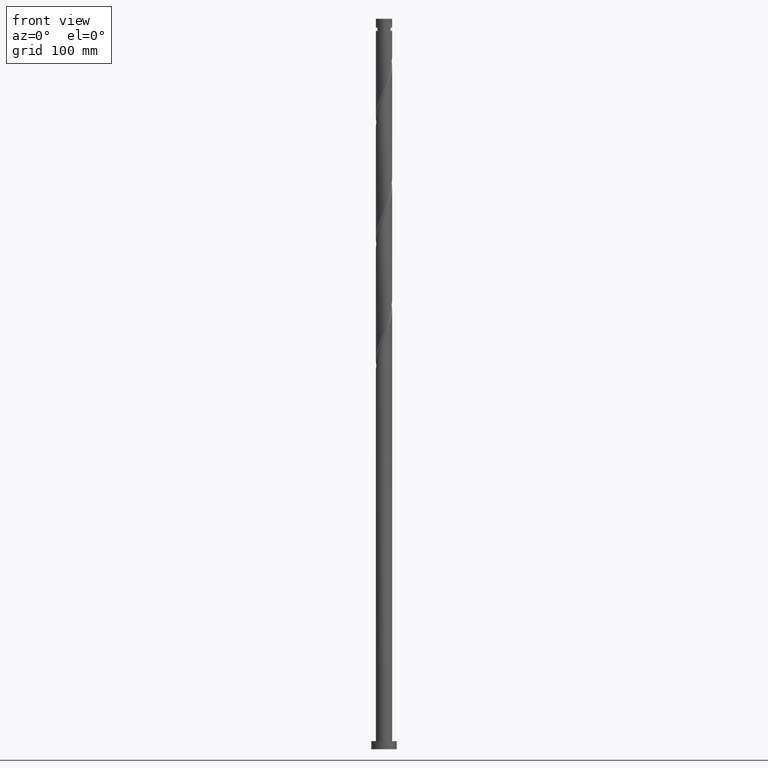
[diagram: clean part render]
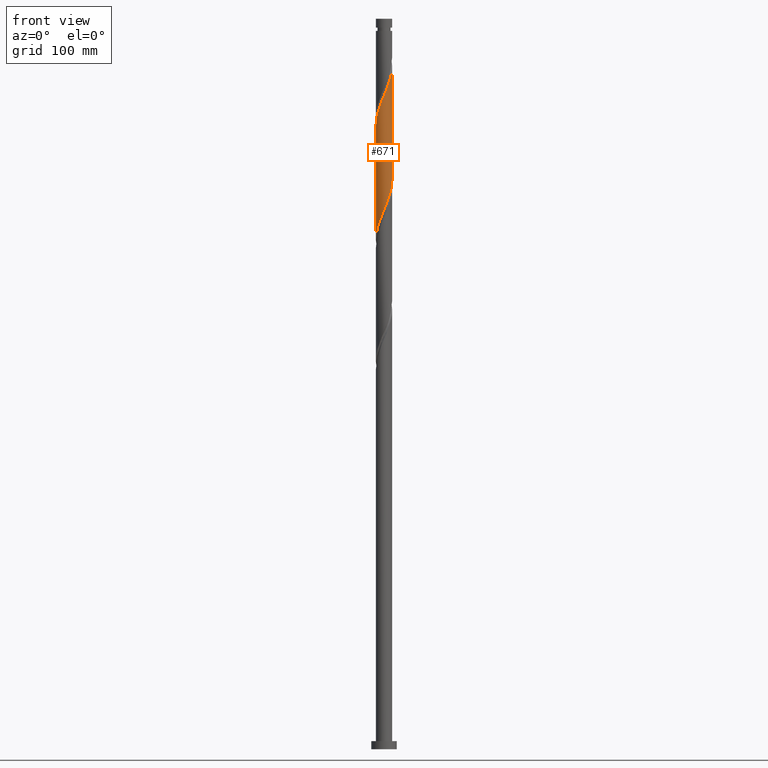
[diagram: same view with one face highlighted and labeled with its STEP entity id]
A machine part, front view. The second image highlights one B-rep face of the part: STEP entity #671.
In plain terms, the highlighted cylindrical surface (edge-blend (fillet) strip) has radius 7 mm, axis along (-0, -0, -1).
Its self-contained STEP definition (entity closure, byte-faithful):
#54 = CARTESIAN_POINT ( 'NONE',  ( 2.629785931500609575, -6.487235617308932056, 570.0892914515895882 ) ) ;
#65 = CARTESIAN_POINT ( 'NONE',  ( -5.918804784004603192, -3.793216437833844878, 546.9275267457073824 ) ) ;
#72 = CARTESIAN_POINT ( 'NONE',  ( 6.959264651295728576, -0.7540792486375327286, 489.7951738045308048 ) ) ;
#95 =( BOUNDED_CURVE ( )  B_SPLINE_CURVE ( 2, ( #1340, #1171, #829, #1591, #251, #266, #567, #65, #1944, #226, #392, #767, #732, #1117, #950, #756, #1628, #929, #1911, #1580, #2075, #2100, #54, #743, #173, #185, #694, #527, #833, #1512, #137, #1015, #501, #1160, #2154, #660, #1837 ),
 .UNSPECIFIED., .F., .T. ) 
 B_SPLINE_CURVE_WITH_KNOTS ( ( 3, 2, 2, 2, 2, 2, 2, 2, 2, 2, 2, 2, 2, 2, 2, 2, 2, 2, 3 ),
 ( 0.5545293573162902723, 0.5588235294117647189, 0.5661764705882352811, 0.5735294117647058432, 0.5808823529411764053, 0.5882352941176470784, 0.5955882352941176405, 0.6029411764705883137, 0.6102941176470588758, 0.6176470588235294379, 0.6250000000000000000, 0.6323529411764705621, 0.6397058823529411242, 0.6470588235294116863, 0.6544117647058823595, 0.6617647058823529216, 0.6691176470588235947, 0.6764705882352941568, 0.6795293573162902723 ),
 .UNSPECIFIED. ) 
 CURVE ( )  GEOMETRIC_REPRESENTATION_ITEM ( )  RATIONAL_B_SPLINE_CURVE ( ( 0.9072066346053130337, 0.9068261157890800117, 0.9090909090909514711, 0.9052128875409826136, 0.9090909090909514711, 0.9052128875409826136, 0.9090909090909514711, 0.9052128875409826136, 0.9090909090909514711, 0.9052128875409826136, 0.9090909090909514711, 0.9052128875409826136, 0.9090909090909514711, 0.9052128875409826136, 0.9090909090909514711, 0.9052128875409826136, 0.9090909090909514711, 0.9052128875409826136, 0.9090909090909514711, 0.9052128875409826136, 0.9090909090909514711, 0.9052128875409826136, 0.9090909090909514711, 0.9052128875409826136, 0.9090909090909514711, 0.9052128875409826136, 0.9090909090909514711, 0.9052128875409826136, 0.9090909090909514711, 0.9052128875409826136, 0.9090909090909514711, 0.9052128875409826136, 0.9090909090909514711, 0.9052128875409826136, 0.9090909090909514711, 0.9074776808428539621, 0.9072066346053130337 ) ) 
 REPRESENTATION_ITEM ( '' )  );
#137 = CARTESIAN_POINT ( 'NONE',  ( 6.313857628450200821, -3.022449643527803875, 582.4422326280603102 ) ) ;
#143 = VECTOR ( 'NONE', #1420, 1000.000000000000000 ) ;
#147 = DIRECTION ( 'NONE',  ( -1.000000000000000000, 0.000000000000000000, 0.000000000000000000 ) ) ;
#173 = CARTESIAN_POINT ( 'NONE',  ( 3.777035245235270011, -5.893556206251932217, 573.1775267457072687 ) ) ;
#180 = EDGE_CURVE ( 'NONE', #184, #940, #1397, .T. ) ;
#184 = VERTEX_POINT ( 'NONE', #2127 ) ;
#185 = CARTESIAN_POINT ( 'NONE',  ( 4.323153652638917599, -5.543562348443775711, 574.7216443927660521 ) ) ;
#220 = CARTESIAN_POINT ( 'NONE',  ( 1.818576125090521467, -6.790693771085488883, 469.7216443927662226 ) ) ;
#226 = CARTESIAN_POINT ( 'NONE',  ( -5.121024193531052759, -4.816207244780721375, 550.0157620398249492 ) ) ;
#232 = CARTESIAN_POINT ( 'NONE',  ( 1.179200414852473067, -6.899962781175832838, 468.1775267457073824 ) ) ;
#251 = CARTESIAN_POINT ( 'NONE',  ( -6.702208247472152713, -2.020001140474033896, 542.2951738045308048 ) ) ;
#258 = CARTESIAN_POINT ( 'NONE',  ( 5.918804784004594310, -3.793216437833842214, 482.0745855692366604 ) ) ;
#266 = CARTESIAN_POINT ( 'NONE',  ( -6.515027576382768970, -2.641052194558208832, 543.8392914515897019 ) ) ;
#282 = CARTESIAN_POINT ( 'NONE',  ( -3.777035245235265126, -5.893556206251924223, 455.8245855692368309 ) ) ;
#305 = CARTESIAN_POINT ( 'NONE',  ( -6.999999999999998224, -0.2691583152137941304, 439.7426706842259705 ) ) ;
#314 = CARTESIAN_POINT ( 'NONE',  ( -6.593928833002401291, -2.437384573822549250, 445.0157620398251765 ) ) ;
#366 = ORIENTED_EDGE ( 'NONE', *, *, #1071, .T. ) ;
#374 = CARTESIAN_POINT ( 'NONE',  ( -6.999999999999998224, -1.353450155128143261E-14, 439.0992649321662498 ) ) ;
#383 = CARTESIAN_POINT ( 'NONE',  ( 3.592125691453326830, -6.008047354740221557, 474.3539973339428002 ) ) ;
#392 = CARTESIAN_POINT ( 'NONE',  ( -4.634938729834700233, -5.245697567595605015, 551.5598796868837326 ) ) ;
#412 = CARTESIAN_POINT ( 'NONE',  ( 5.519914488767819982, -4.304711841307275577, 480.5304679221779907 ) ) ;
#424 = CARTESIAN_POINT ( 'NONE',  ( 6.515027576382762753, -2.641052194558204391, 485.1628208633544546 ) ) ;
#453 = CARTESIAN_POINT ( 'NONE',  ( -6.929522904244864279, -1.184252226071104142, 441.9275267457073255 ) ) ;
#501 = CARTESIAN_POINT ( 'NONE',  ( 6.761725868623642555, -1.810818399946827695, 585.5304679221778770 ) ) ;
#527 = CARTESIAN_POINT ( 'NONE',  ( 5.268170654856895396, -4.654795265821402239, 577.8098796868835052 ) ) ;
#536 = CARTESIAN_POINT ( 'NONE',  ( 2.426987120929418928, -6.565800295077723447, 471.2657620398250060 ) ) ;
#548 = CARTESIAN_POINT ( 'NONE',  ( 5.121024193531042989, -4.816207244780716046, 478.9863502751190367 ) ) ;
#559 = CARTESIAN_POINT ( 'NONE',  ( -0.7573097987289498789, -6.989078829442237684, 463.5451738045309753 ) ) ;
#567 = CARTESIAN_POINT ( 'NONE',  ( -6.216916180193686969, -3.217134316196027299, 545.3834090986485990 ) ) ;
#581 = EDGE_LOOP ( 'NONE', ( #1255, #592, #366, #1554 ) ) ;
#582 = EDGE_CURVE ( 'NONE', #1758, #720, #95, .T. ) ;
#592 = ORIENTED_EDGE ( 'NONE', *, *, #582, .F. ) ;
#660 = CARTESIAN_POINT ( 'NONE',  ( 7.000000000000007994, -0.2691583152137951851, 589.2594416307181291 ) ) ;
#669 = CARTESIAN_POINT ( 'NONE',  ( 7.000000000000008882, 1.732894238353902554E-15, 589.9028473827778498 ) ) ;
#671 = ADVANCED_FACE ( 'NONE', ( #1674 ), #1988, .T. ) ;
#694 = CARTESIAN_POINT ( 'NONE',  ( 4.795662153747908718, -5.099178807132586755, 576.2657620398249492 ) ) ;
#720 = VERTEX_POINT ( 'NONE', #669 ) ;
#726 = CARTESIAN_POINT ( 'NONE',  ( -0.1087425470572652292, -6.999155310354205461, 465.0892914515898156 ) ) ;
#732 = CARTESIAN_POINT ( 'NONE',  ( -3.592125691453332603, -6.008047354740226886, 554.6481149810016404 ) ) ;
#743 = CARTESIAN_POINT ( 'NONE',  ( 3.230916837831620647, -6.243550064060092275, 571.6334090986483716 ) ) ;
#744 = AXIS2_PLACEMENT_3D ( 'NONE', #2165, #2179, #147 ) ;
#756 = CARTESIAN_POINT ( 'NONE',  ( -1.818576125090525908, -6.790693771085499542, 559.2804679221779907 ) ) ;
#767 = CARTESIAN_POINT ( 'NONE',  ( -4.148853266138343265, -5.675187890410490432, 553.1039973339422886 ) ) ;
#829 = CARTESIAN_POINT ( 'NONE',  ( -6.959264651295737458, -0.7540792486375293979, 539.2069385104132380 ) ) ;
#833 = CARTESIAN_POINT ( 'NONE',  ( 5.650978539377443433, -4.131154989527226817, 579.3539973339427434 ) ) ;
#898 = CARTESIAN_POINT ( 'NONE',  ( 0.5398247046144223349, -7.009231791266177680, 466.6334090986487126 ) ) ;
#929 = CARTESIAN_POINT ( 'NONE',  ( -0.5398247046144254435, -7.009231791266187450, 562.3687032162954438 ) ) ;
#940 = VERTEX_POINT ( 'NONE', #374 ) ;
#950 = CARTESIAN_POINT ( 'NONE',  ( -2.426987120929422481, -6.565800295077733217, 557.7363502751190936 ) ) ;
#956 = CARTESIAN_POINT ( 'NONE',  ( -6.033786423897983475, -3.607514713233048287, 448.1039973339428002 ) ) ;
#963 = CARTESIAN_POINT ( 'NONE',  ( -6.979331644137396040, -0.5375219075929524859, 440.3834090986485421 ) ) ;
#975 = CARTESIAN_POINT ( 'NONE',  ( -6.761725868623631008, -1.810818399946826140, 443.4716443927662795 ) ) ;
#1015 = CARTESIAN_POINT ( 'NONE',  ( 6.593928833002409284, -2.437384573822554579, 583.9863502751189799 ) ) ;
#1071 = EDGE_CURVE ( 'NONE', #1758, #940, #1445, .T. ) ;
#1078 = CARTESIAN_POINT ( 'NONE',  ( -2.028655025169598058, -6.730921170557762956, 460.4569385104132380 ) ) ;
#1117 = CARTESIAN_POINT ( 'NONE',  ( -3.035398116768320609, -6.340906819069966005, 556.1922326280603102 ) ) ;
#1132 = CARTESIAN_POINT ( 'NONE',  ( -7.000000000000000000, 0.000000000000000000, 630.0000000000000000 ) ) ;
#1151 = CARTESIAN_POINT ( 'NONE',  ( -4.323153652638914046, -5.543562348443765053, 454.2804679221779907 ) ) ;
#1160 = CARTESIAN_POINT ( 'NONE',  ( 6.929522904244872272, -1.184252226071107250, 587.0745855692366604 ) ) ;
#1171 = CARTESIAN_POINT ( 'NONE',  ( -7.000000000000011546, -0.3781398857548348702, 538.3067666147907175 ) ) ;
#1210 = CARTESIAN_POINT ( 'NONE',  ( -7.000000000000009770, -1.105467014122317242E-14, 537.4028473827780772 ) ) ;
#1234 = CARTESIAN_POINT ( 'NONE',  ( -1.392982411949275079, -6.859999999999998543, 462.0010561574720782 ) ) ;
#1249 = CARTESIAN_POINT ( 'NONE',  ( 6.216916180193677199, -3.217134316196025079, 483.6187032162956143 ) ) ;
#1255 = ORIENTED_EDGE ( 'NONE', *, *, #1799, .F. ) ;
#1271 = CARTESIAN_POINT ( 'NONE',  ( -6.999999999999998224, -1.353450155128143261E-14, 439.0992649321662498 ) ) ;
#1340 = CARTESIAN_POINT ( 'NONE',  ( -7.000000000000009770, -1.105467014122317400E-14, 537.4028473827780772 ) ) ;
#1396 = CARTESIAN_POINT ( 'NONE',  ( 6.999999999999997335, -0.3781398857548748937, 490.6953457001533252 ) ) ;
#1397 =( BOUNDED_CURVE ( )  B_SPLINE_CURVE ( 2, ( #1564, #1396, #72, #2068, #1775, #424, #1249, #258, #412, #548, #1904, #1610, #383, #1741, #536, #220, #232, #898, #726, #559, #1234, #1078, #1752, #1656, #282, #1151, #1967, #1795, #2155, #956, #1827, #314, #975, #453, #963, #305, #1271 ),
 .UNSPECIFIED., .F., .T. ) 
 B_SPLINE_CURVE_WITH_KNOTS ( ( 3, 2, 2, 2, 2, 2, 2, 2, 2, 2, 2, 2, 2, 2, 2, 2, 2, 2, 3 ),
 ( 0.5545293573162907164, 0.5588235294117647189, 0.5661764705882352811, 0.5735294117647058432, 0.5808823529411765163, 0.5882352941176470784, 0.5955882352941176405, 0.6029411764705882026, 0.6102941176470588758, 0.6176470588235294379, 0.6250000000000000000, 0.6323529411764705621, 0.6397058823529411242, 0.6470588235294117974, 0.6544117647058823595, 0.6617647058823529216, 0.6691176470588234837, 0.6764705882352941568, 0.6795293573162902723 ),
 .UNSPECIFIED. ) 
 CURVE ( )  GEOMETRIC_REPRESENTATION_ITEM ( )  RATIONAL_B_SPLINE_CURVE ( ( 0.9072066346053069275, 0.9068261157890742385, 0.9090909090909453649, 0.9052128875409765074, 0.9090909090909453649, 0.9052128875409765074, 0.9090909090909453649, 0.9052128875409765074, 0.9090909090909453649, 0.9052128875409765074, 0.9090909090909453649, 0.9052128875409765074, 0.9090909090909453649, 0.9052128875409765074, 0.9090909090909453649, 0.9052128875409765074, 0.9090909090909453649, 0.9052128875409765074, 0.9090909090909453649, 0.9052128875409765074, 0.9090909090909453649, 0.9052128875409765074, 0.9090909090909453649, 0.9052128875409765074, 0.9090909090909453649, 0.9052128875409765074, 0.9090909090909453649, 0.9052128875409765074, 0.9090909090909453649, 0.9052128875409765074, 0.9090909090909453649, 0.9052128875409765074, 0.9090909090909453649, 0.9052128875409765074, 0.9090909090909453649, 0.9074776808428478558, 0.9072066346053069275 ) ) 
 REPRESENTATION_ITEM ( '' )  );
#1420 = DIRECTION ( 'NONE',  ( -0.000000000000000000, -0.000000000000000000, -1.000000000000000000 ) ) ;
#1422 = VECTOR ( 'NONE', #1969, 1000.000000000000000 ) ;
#1445 = LINE ( 'NONE', #1132, #1422 ) ;
#1512 = CARTESIAN_POINT ( 'NONE',  ( 6.033786423897992357, -3.607514713233052728, 580.8981149810015268 ) ) ;
#1554 = ORIENTED_EDGE ( 'NONE', *, *, #180, .F. ) ;
#1564 = CARTESIAN_POINT ( 'NONE',  ( 6.999999999999998224, -6.244394755447724730E-15, 491.5992649321660792 ) ) ;
#1580 = CARTESIAN_POINT ( 'NONE',  ( 0.7573097987289514332, -6.989078829442245677, 565.4569385104133517 ) ) ;
#1591 = CARTESIAN_POINT ( 'NONE',  ( -6.889388918561535569, -1.398950086389860070, 540.7510561574720214 ) ) ;
#1610 = CARTESIAN_POINT ( 'NONE',  ( 4.148853266138337936, -5.675187890410482439, 475.8981149810015836 ) ) ;
#1628 = CARTESIAN_POINT ( 'NONE',  ( -1.179200414852474399, -6.899962781175845272, 560.8245855692368877 ) ) ;
#1656 = CARTESIAN_POINT ( 'NONE',  ( -3.230916837831618871, -6.243550064060083393, 457.3687032162956143 ) ) ;
#1674 = FACE_OUTER_BOUND ( 'NONE', #581, .T. ) ;
#1741 = CARTESIAN_POINT ( 'NONE',  ( 3.035398116768313059, -6.340906819069959788, 472.8098796868838463 ) ) ;
#1752 = CARTESIAN_POINT ( 'NONE',  ( -2.629785931500608243, -6.487235617308922286, 458.9128208633544546 ) ) ;
#1758 = VERTEX_POINT ( 'NONE', #1210 ) ;
#1775 = CARTESIAN_POINT ( 'NONE',  ( 6.702208247472142943, -2.020001140474032564, 486.7069385104133517 ) ) ;
#1795 = CARTESIAN_POINT ( 'NONE',  ( -5.268170654856889179, -4.654795265821393357, 451.1922326280602533 ) ) ;
#1799 = EDGE_CURVE ( 'NONE', #720, #184, #2067, .T. ) ;
#1827 = CARTESIAN_POINT ( 'NONE',  ( -6.313857628450192827, -3.022449643527796326, 446.5598796868839031 ) ) ;
#1837 = CARTESIAN_POINT ( 'NONE',  ( 7.000000000000008882, 1.732894238353902554E-15, 589.9028473827778498 ) ) ;
#1904 = CARTESIAN_POINT ( 'NONE',  ( 4.634938729834689575, -5.245697567595597022, 477.4422326280603670 ) ) ;
#1911 = CARTESIAN_POINT ( 'NONE',  ( 0.1087425470572626479, -6.999155310354217008, 563.9128208633545682 ) ) ;
#1915 = CARTESIAN_POINT ( 'NONE',  ( 7.000000000000000000, 8.572527594031473190E-16, 630.0000000000000000 ) ) ;
#1944 = CARTESIAN_POINT ( 'NONE',  ( -5.519914488767827976, -4.304711841307281794, 548.4716443927661658 ) ) ;
#1967 = CARTESIAN_POINT ( 'NONE',  ( -4.795662153747900724, -5.099178807132579649, 452.7363502751191504 ) ) ;
#1969 = DIRECTION ( 'NONE',  ( -0.000000000000000000, -0.000000000000000000, -1.000000000000000000 ) ) ;
#1988 = CYLINDRICAL_SURFACE ( 'NONE', #744, 7.000000000000000000 ) ;
#2067 = LINE ( 'NONE', #1915, #143 ) ;
#2068 = CARTESIAN_POINT ( 'NONE',  ( 6.889388918561525799, -1.398950086389861180, 488.2510561574721351 ) ) ;
#2075 = CARTESIAN_POINT ( 'NONE',  ( 1.392982411949274413, -6.860000000000008313, 567.0010561574720214 ) ) ;
#2100 = CARTESIAN_POINT ( 'NONE',  ( 2.028655025169601167, -6.730921170557769173, 568.5451738045308048 ) ) ;
#2127 = CARTESIAN_POINT ( 'NONE',  ( 6.999999999999998224, -6.244394755447724730E-15, 491.5992649321660792 ) ) ;
#2154 = CARTESIAN_POINT ( 'NONE',  ( 6.979331644137407586, -0.5375219075929559276, 588.6187032162956712 ) ) ;
#2155 = CARTESIAN_POINT ( 'NONE',  ( -5.650978539377438103, -4.131154989527219712, 449.6481149810015268 ) ) ;
#2165 = CARTESIAN_POINT ( 'NONE',  ( 0.000000000000000000, 0.000000000000000000, 630.0000000000000000 ) ) ;
#2179 = DIRECTION ( 'NONE',  ( -0.000000000000000000, -0.000000000000000000, -1.000000000000000000 ) ) ;